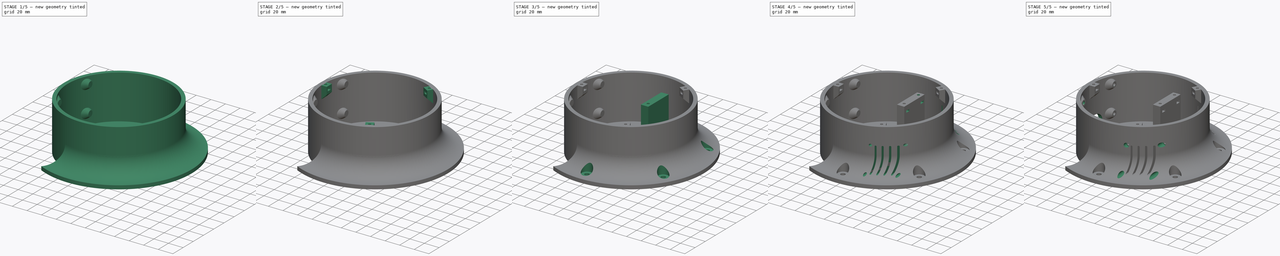
[diagram: build sequence overview — one tinted view per stage of 5, left to right]
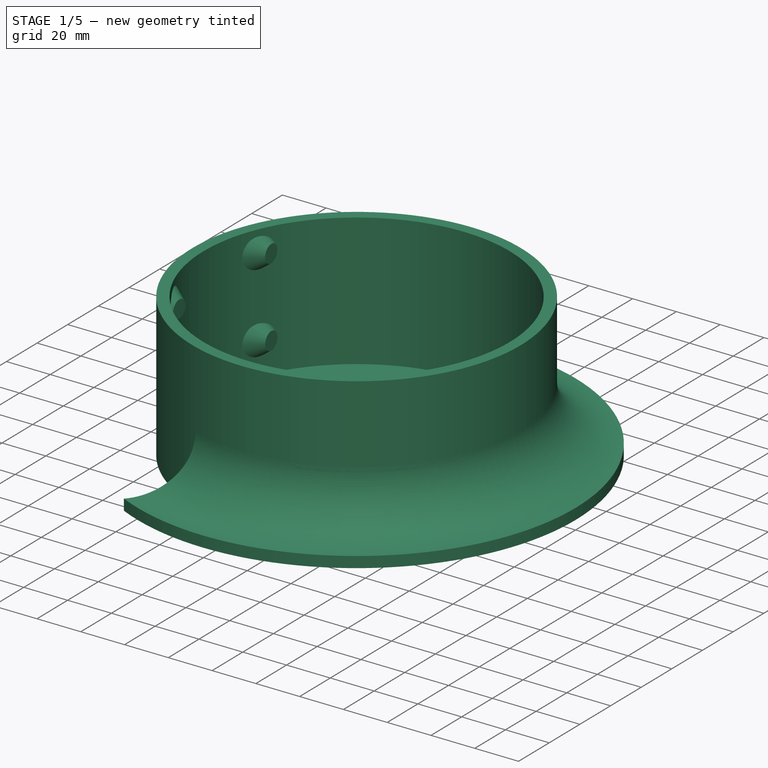
[diagram: stage 1 of 5 — iso view after this stage's code; geometry added in this stage tinted green]
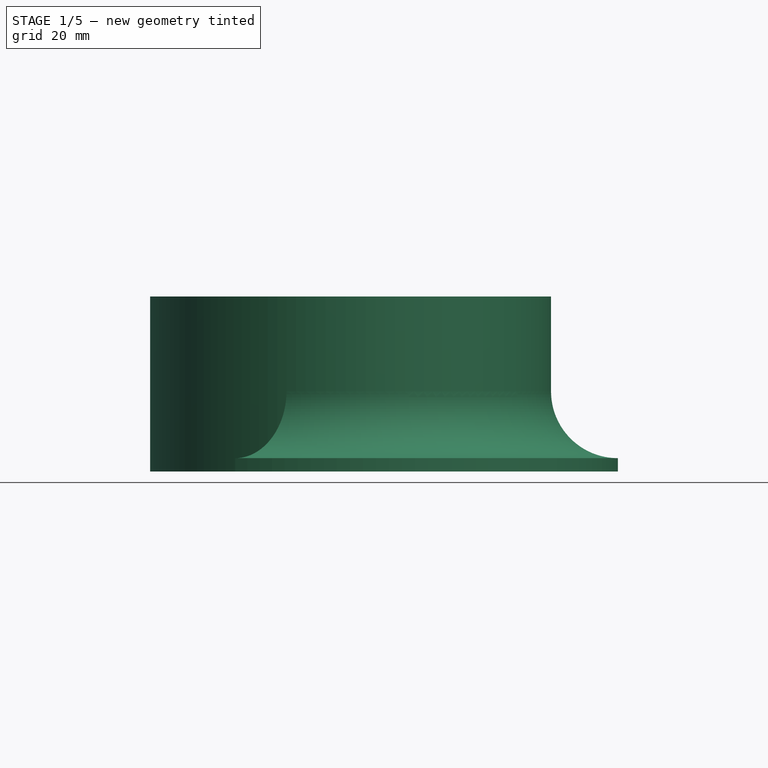
[diagram: stage 1 of 5 — front view after this stage's code; geometry added in this stage tinted green]
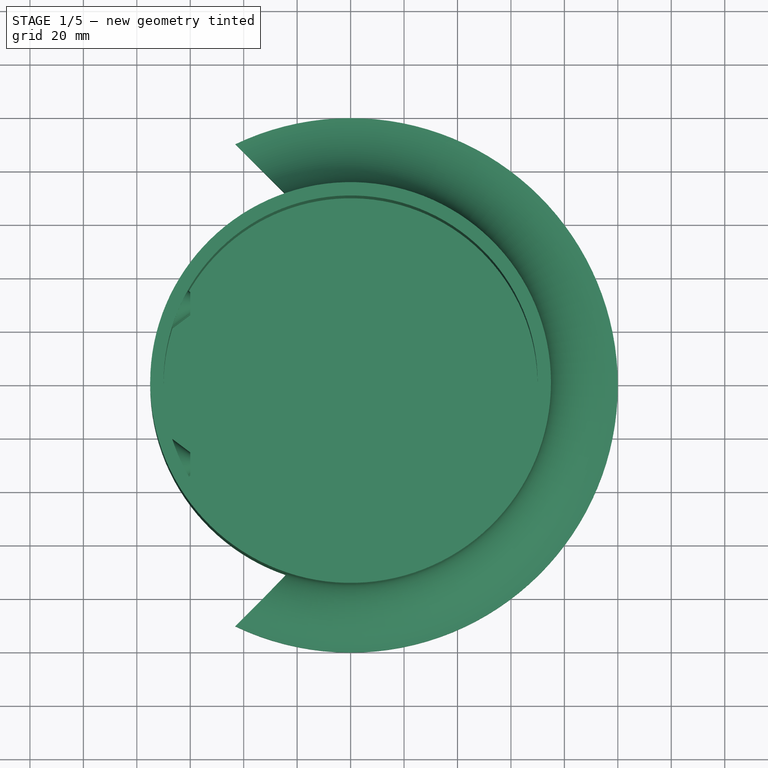
[diagram: stage 1 of 5 — top view after this stage's code; geometry added in this stage tinted green]
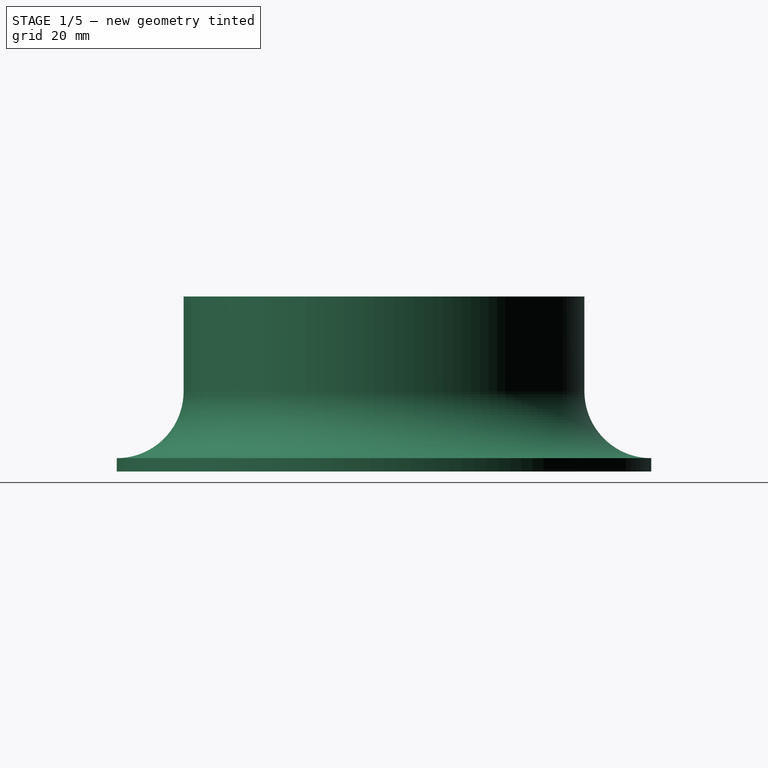
[diagram: stage 1 of 5 — right view after this stage's code; geometry added in this stage tinted green]
FCSTD DOCUMENT  (FreeCAD 0.19R24276 (Git))
Label: BaseBot
License: All rights reserved
LicenseURL: http://en.wikipedia.org/wiki/All_rights_reserved
objects: Sketcher::SketchObject×21, PartDesign::Line×17, PartDesign::Pocket×16, PartDesign::CoordinateSystem×5, PartDesign::Plane×4, PartDesign::Pad×3, PartDesign::Body×3, PartDesign::Revolution×2, PartDesign::PolarPattern×2, Spreadsheet::Sheet×1, PartDesign::LinearPattern×1, Part::FeaturePython×1, Part::Cylinder×1, Part::MultiCommon×1, Part::MultiFuse×1, PartDesign::FeatureBase×1
note: 99 computed .brp shape members not serialized (recipe doc carries the construction recipe); baked Part::Feature solids carry a one-line shape summary decoded from their .brp

FEATURE [Sketcher::SketchObject] Sketch
  FullyConstrained = true
  MapMode = 5
  Placement = pos=(0,0,0) rot=(1,0,0;1.5708rad)
  Support = -> [XZ_Plane]
  sketch-geometry (8):
    g0: LineSegment StartX=100 StartY=5 StartZ=0 EndX=100 EndY=0 EndZ=0
    g1: LineSegment StartX=100 StartY=0 StartZ=0 EndX=0 EndY=0 EndZ=0
    g2: LineSegment StartX=0 StartY=0 StartZ=0 EndX=0 EndY=5 EndZ=0
    g3: LineSegment StartX=0 StartY=5 StartZ=0 EndX=70 EndY=5 EndZ=0
    g4: LineSegment StartX=70 StartY=5 StartZ=0 EndX=70 EndY=65.5 EndZ=0
    g5: LineSegment StartX=70 StartY=65.5 StartZ=0 EndX=75 EndY=65.5 EndZ=0
    g6: LineSegment StartX=75 StartY=65.5 StartZ=0 EndX=75 EndY=30 EndZ=0
    g7: ArcOfCircle CenterX=100 CenterY=30 CenterZ=0 NormalX=0 NormalY=0 NormalZ=1 AngleXU=0 Radius=25 StartAngle=3.14159 EndAngle=4.71239
  constraints (23):
    c: PointOnObject(g0,g-1)
    c: Vertical(g0)
    c: Coincident(g0,g1)
    c: Coincident(g1,g-1)
    c: Coincident(g1,g2)
    c: PointOnObject(g2,g-2)
    c: Coincident(g2,g3)
    c: Horizontal(g3)
    c: Coincident(g3,g4)
    c: Vertical(g4)
    c: Coincident(g4,g5)
    c: Horizontal(g5)
    c: Coincident(g5,g6)
    c: Vertical(g6)
    c: Coincident(g7,g0)
    c: Perpendicular(g7,g0)
    c: Tangent(g7,g6) = -1.5708
    c: DistanceY(g0,g0) = 5
    c: Equal(g2,g0)
    c: DistanceX(g1,g1) = 100
    c: DistanceY(g1,g4) = 65.5
    c: DistanceX(g1,g5) = 75
    c: DistanceX(g2,g4) = 70
FEATURE [PartDesign::Revolution] Revolution
  Angle = 360
  Axis = (0,-2e-16,1)
  Base = (0,0,0)
  Placement = pos=(0,0,0) rot=(1,0,0;1.5708rad)
  Profile = -> Sketch
  ReferenceAxis = -> Sketch [V_Axis]
  Refine = true
  Reversed = true
FEATURE [Sketcher::SketchObject] Sketch001
  ExternalGeometry = -> [Revolution]
  FullyConstrained = true
  MapMode = 5
  Placement = pos=(0,0,0) rot=(1,0,0;3.14159rad)
  Support = -> [Revolution]
  sketch-geometry (6):
    g0: LineSegment StartX=-24 StartY=71.0563 StartZ=0 EndX=-52.9437 EndY=100 EndZ=0
    g1: LineSegment StartX=-52.9437 StartY=100 StartZ=0 EndX=-112.944 EndY=100 EndZ=0
    g2: LineSegment StartX=-112.944 StartY=100 StartZ=0 EndX=-112.944 EndY=-100 EndZ=0
    g3: LineSegment StartX=-112.944 StartY=-100 StartZ=0 EndX=-52.9437 EndY=-100 EndZ=0
    g4: LineSegment StartX=-52.9437 StartY=-100 StartZ=0 EndX=-24 EndY=-71.0563 EndZ=0
    g5: ArcOfCircle CenterX=0 CenterY=0 CenterZ=0 NormalX=0 NormalY=0 NormalZ=1 AngleXU=0 Radius=75 StartAngle=1.89653 EndAngle=4.38666
  constraints (16):
    c: Coincident(g0,g1)
    c: Horizontal(g1)
    c: Coincident(g1,g2)
    c: Coincident(g2,g3)
    c: Coincident(g3,g4)
    c: Symmetric(g2,g1,g-1)
    c: Symmetric(g0,g3,g-1)
    c: DistanceY(g2,g2) = 200
    c: DistanceX(g3,g3) = 60
    c: Angle(g1,g0) = 2.35619
    c: Coincident(g4,g5)
    c: Coincident(g5,g0)
    c: Equal(g5,g-3)
    c: Coincident(g5,g-1)
    c: DistanceX(g0,g5) = 24
    c: Angle(g4,g3) = 2.35619
FEATURE [PartDesign::Pocket] Pocket
  BaseFeature = -> Revolution
  Length = 5
  Length2 = 100
  Placement = pos=(0,0,0) rot=(1,0,0;1.5708rad)
  Profile = -> Sketch001
  Refine = true
  Type = 1
FEATURE [PartDesign::Body] Body
  Group = -> [Sketch,Revolution,Sketch001,Pocket,Sketch002,Pad,Sketch003,Pocket001,DatumPlane,Sketch004,Pocket002,PolarPattern,Sketch005,Pocket003,DatumPlane001,Sketch006,Pocket004,PolarPattern001,Sketch007,Pocket005,Sketch008,Pocket006,Sketch009,Pad001,Sketch010,Pocket007,DatumPlane002,Sketch011,Pocket008,LinearPattern,Sketch012,Pocket009,Sketch013,Pad002,Sketch014,Pocket010,Sketch015,Pocket011,DatumPlane003,+6 more]
  Origin = -> Origin
  Tip = -> Pocket014
FEATURE [Sketcher::SketchObject] Sketch019
  FullyConstrained = true
  MapMode = 5
  Placement = pos=(0,0,0) rot=(1,0,0;1.5708rad)
  Support = -> [XZ_Plane001]
  sketch-geometry (4):
    g0: LineSegment StartX=0 StartY=0 StartZ=0 EndX=0 EndY=4 EndZ=0
    g1: LineSegment StartX=0 StartY=4 StartZ=0 EndX=-8 EndY=10 EndZ=0
    g2: LineSegment StartX=-8 StartY=10 StartZ=0 EndX=-8 EndY=0 EndZ=0
    g3: LineSegment StartX=-8 StartY=0 StartZ=0 EndX=0 EndY=0 EndZ=0
  constraints (11):
    c: PointOnObject(g0,g-2)
    c: Coincident(g0,g1)
    c: Coincident(g1,g2)
    c: Vertical(g2)
    c: DistanceY(g-1,g0) = 4
    c: DistanceX(g2,g0) = 8
    c: Coincident(g0,g-1)
    c: Coincident(g3,g2)
    c: Horizontal(g3)
    c: Coincident(g3,g0)
    c: DistanceY(g2,g2) = 10
FEATURE [PartDesign::Revolution] Revolution001
  Angle = 360
  Axis = (1,0,0)
  Base = (0,0,0)
  Placement = pos=(0,0,0) rot=(1,0,0;1.5708rad)
  Profile = -> Sketch019
  ReferenceAxis = -> Sketch019 [H_Axis]
  Refine = true
FEATURE [PartDesign::Body] Body001
  Group = -> [Sketch019,Revolution001]
  Origin = -> Origin001
  Placement = pos=(-60,30,19.75) rot=(0,0,1;0rad)
  Tip = -> Revolution001
FEATURE [Part::FeaturePython] Array  # Draft array (typed FeaturePython)
  Angle = 360
  ArrayType = 0
  Axis = (0,0,1)
  Base = -> Body001
  Center = (0,0,0)
  Count = 4
  ExpandArray = false
  Fuse = false
  IntervalAxis = (0,0,0)
  IntervalX = (100,-60,32)
  IntervalY = (0,-60,0)
  IntervalZ = (0,0,36)
  NumberCircles = 3
  NumberPolar = 5
  NumberX = 1
  NumberY = 2
  NumberZ = 2
  PlacementList = 4 placements: [(-60,30,19.75),(-60,30,55.75),(-60,-30,19.75),(-60,-30,55.75)]
  RadialDistance = 50
  ScaleList = (4) [(1,1,1),(1,1,1),(1,1,1),(1,1,1)]
  Symmetry = 1
  TangentialDistance = 25
FEATURE [Part::Cylinder] Cylinder
  Angle = 360
  AttacherType = Attacher::AttachEngine3D
  Height = 65.5
  Radius = 73
FEATURE [Part::MultiCommon] Common
  Refine = true
  Shapes = -> [Array,Cylinder]
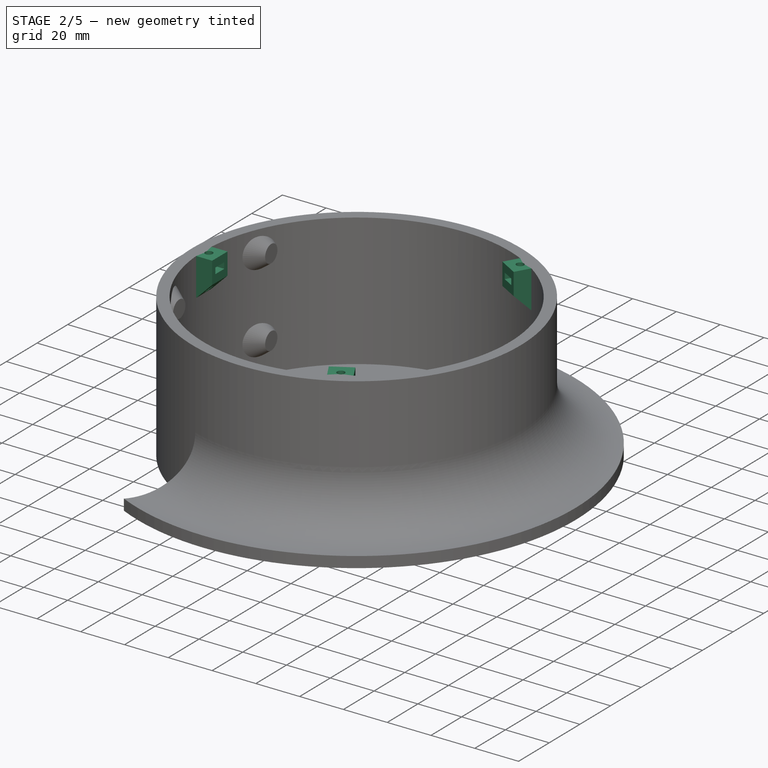
[diagram: stage 2 of 5 — iso view after this stage's code; geometry added in this stage tinted green]
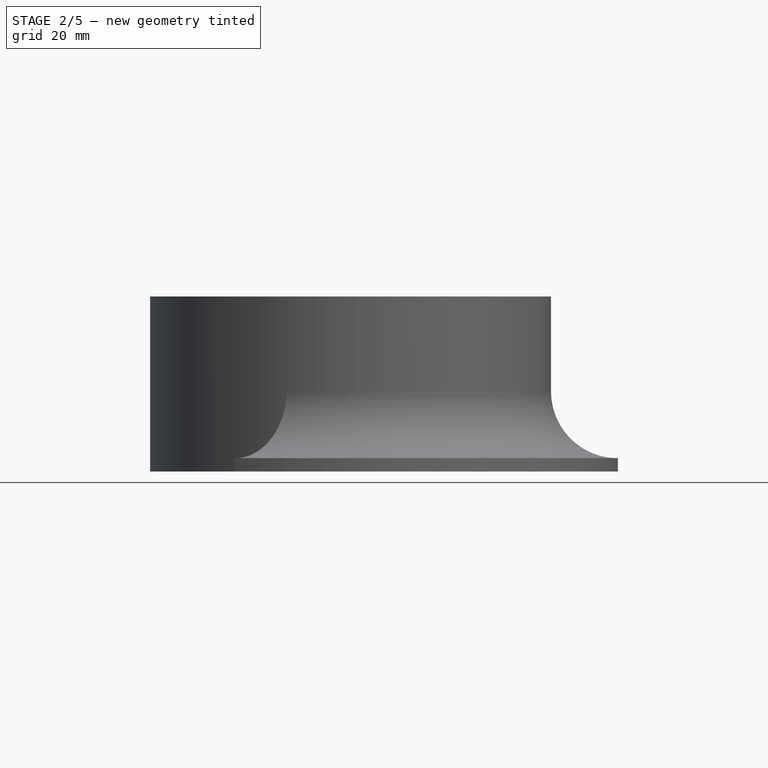
[diagram: stage 2 of 5 — front view after this stage's code; geometry added in this stage tinted green]
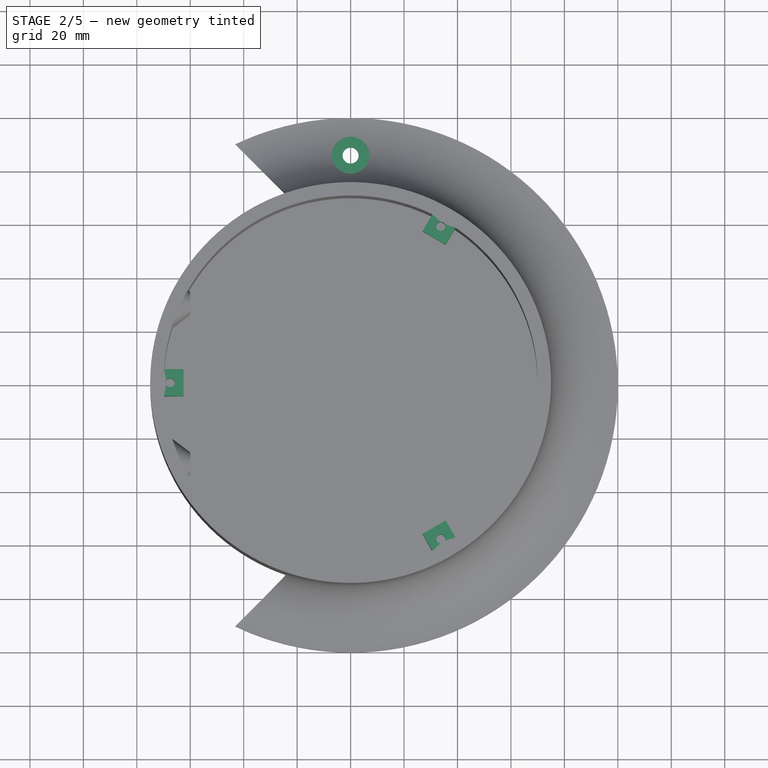
[diagram: stage 2 of 5 — top view after this stage's code; geometry added in this stage tinted green]
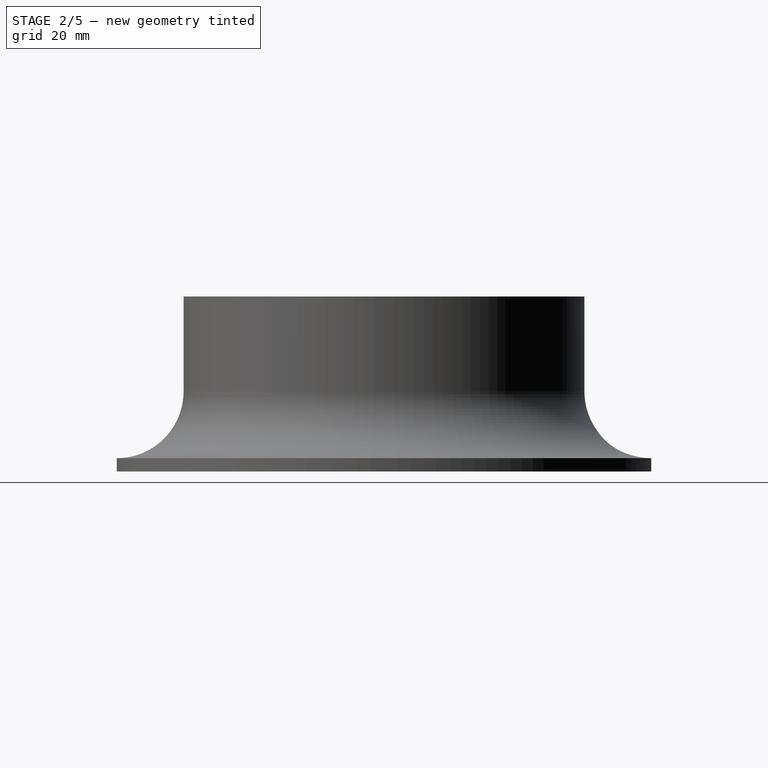
[diagram: stage 2 of 5 — right view after this stage's code; geometry added in this stage tinted green]
FEATURE [Sketcher::SketchObject] Sketch002
  ExternalGeometry = -> [Pocket]
  FullyConstrained = true
  MapMode = 5
  Placement = pos=(0,0,0) rot=(1,0,0;1.5708rad)
  Support = -> [XZ_Plane]
  sketch-geometry (4):
    g0: LineSegment StartX=-72.5 StartY=65.5 StartZ=0 EndX=-62.5 EndY=65.5 EndZ=0
    g1: LineSegment StartX=-62.5 StartY=65.5 StartZ=0 EndX=-62.5 EndY=55.5 EndZ=0
    g2: LineSegment StartX=-62.5 StartY=55.5 StartZ=0 EndX=-72.5 EndY=45.5 EndZ=0
    g3: LineSegment StartX=-72.5 StartY=45.5 StartZ=0 EndX=-72.5 EndY=65.5 EndZ=0
  constraints (13):
    c: Coincident(g0,g1)
    c: Vertical(g1)
    c: Coincident(g1,g2)
    c: Coincident(g2,g3)
    c: Coincident(g3,g0)
    c: Vertical(g3)
    c: Horizontal(g0)
    c: Angle(g2,g3) = 0.785398
    c: DistanceY(g1,g1) = 10
    c: DistanceX(g0,g0) = 10
    c: PointOnObject(g0,g-3)
    c: DistanceX(g-3,g-3) = 140
    c: DistanceX(g0,g-3) = 2.5
FEATURE [PartDesign::Pad] Pad
  BaseFeature = -> Pocket
  Direction = (1,1,1)
  Length = 10
  Length2 = 100
  Midplane = true
  Placement = pos=(0,0,0) rot=(1,0,0;1.5708rad)
  Profile = -> Sketch002
  Refine = true
  Type = 0
FEATURE [Sketcher::SketchObject] Sketch003
  ExternalGeometry = -> [Pad]
  FullyConstrained = true
  MapMode = 5
  Placement = pos=(0,1.45e-14,65.5) rot=(0,0,1;3.14159rad)
  Support = -> [Pad]
  expr: Constraints[1] = Spreadsheet.M3BoltBodyRadius
  sketch-geometry (1):
    g0: Circle CenterX=67.5 CenterY=0 CenterZ=0 NormalX=0 NormalY=0 NormalZ=1 AngleXU=0 Radius=1.7
  constraints (3):
    c: PointOnObject(g0,g-1)
    c: Radius(g0) = 1.7
    c: DistanceX(g-3,g0) = 5
FEATURE [Spreadsheet::Sheet] Spreadsheet
  cells = A2=M3BoltBodyRadius; B2(M3BoltBodyRadius)=1.7; A3=M3BoltHeadRadius; B3(M3BoltHeadRadius)=2.95; A4=M3NutCircumradius; B4(M3NutCircumradius)=3.35; A5=M3NutThickness; B5(M3NutThickness)=2.7; A6=M4BoltBodyRadius; B6(M4BoltBodyRadius)=2.2; A7=M6BoltBodyRadius; B7(M6BoltBodyRadius)=3; A8=M6WasherOuterRadius; B8(M6WasherOuterRadius)=7
FEATURE [PartDesign::Pocket] Pocket001
  BaseFeature = -> Pad
  Length = 5
  Length2 = 100
  Placement = pos=(0,0,0) rot=(1,0,0;1.5708rad)
  Profile = -> Sketch003
  Refine = true
  Type = 2
FEATURE [PartDesign::Plane] DatumPlane
  AttachmentOffset = pos=(0,0,-5) rot=(0,0,1;0rad)
  Length = 212.357
  MapMode = 5
  Placement = pos=(0,1.34e-14,60.5) rot=(0,0,1;3.14159rad)
  ResizeMode = 0
  Support = -> [Pocket001]
  Width = 236.726
FEATURE [Sketcher::SketchObject] Sketch004
  ExternalGeometry = -> [Pocket001]
  FullyConstrained = true
  MapMode = 5
  Placement = pos=(0,1.34e-14,60.5) rot=(0,0,1;3.14159rad)
  Support = -> [DatumPlane]
  expr: Constraints[19] = Spreadsheet.M3NutCircumradius
  sketch-geometry (10):
    g0: LineSegment StartX=70.85 StartY=0 StartZ=0 EndX=69.175 EndY=2.90119 EndZ=0
    g1: LineSegment StartX=69.175 StartY=2.90119 StartZ=0 EndX=65.825 EndY=2.90119 EndZ=0
    g2: LineSegment StartX=65.825 StartY=2.90119 StartZ=0 EndX=64.15 EndY=-4.7011e-12 EndZ=0
    g3: LineSegment StartX=64.15 StartY=-4.701e-12 StartZ=0 EndX=65.825 EndY=-2.90119 EndZ=0
    g4: LineSegment StartX=65.825 StartY=-2.90119 StartZ=0 EndX=69.175 EndY=-2.90119 EndZ=0
    g5: LineSegment StartX=69.175 StartY=-2.90119 StartZ=0 EndX=70.85 EndY=0 EndZ=0
    g6: Circle CenterX=67.5 CenterY=0 CenterZ=0 NormalX=0 NormalY=0 NormalZ=1 AngleXU=0 Radius=3.35
    g7: LineSegment StartX=69.175 StartY=2.90119 StartZ=0 EndX=59.175 EndY=2.90119 EndZ=0
    g8: LineSegment StartX=59.175 StartY=2.90119 StartZ=0 EndX=59.175 EndY=-2.90119 EndZ=0
    g9: LineSegment StartX=59.175 StartY=-2.90119 StartZ=0 EndX=69.175 EndY=-2.90119 EndZ=0
  constraints (24):
    c: Coincident(g0,g1)
    c: Coincident(g1,g2)
    c: Coincident(g2,g3)
    c: Coincident(g3,g4)
    c: Coincident(g4,g5)
    c: Coincident(g5,g0)
    c: Equal(g0, g1-g5) x5
    c: PointOnObject(g0,g6)
    c: PointOnObject(g1,g6)
    c: PointOnObject(g2,g6)
    c: PointOnObject(g3,g6)
    c: PointOnObject(g4,g6)
    c: PointOnObject(g5,g6)
    c: Coincident(g6,g-3)
    c: PointOnObject(g5,g-1)
    c: Radius(g6) = 3.35
    c: Coincident(g0,g7)
    c: Horizontal(g7)
    c: Coincident(g7,g8)
    c: Vertical(g8)
    c: Coincident(g8,g9)
    c: Coincident(g9,g5)
    c: Horizontal(g9)
    c: DistanceX(g9,g9) = 10
FEATURE [PartDesign::Pocket] Pocket002
  BaseFeature = -> Pocket001
  Length = 2.7
  Length2 = 100
  Midplane = true
  Placement = pos=(0,0,0) rot=(1,0,0;1.5708rad)
  Profile = -> Sketch004
  Refine = true
  Type = 0
  expr: Length = Spreadsheet.M3NutThickness
FEATURE [PartDesign::PolarPattern] PolarPattern
  Angle = 360
  Axis = -> Sketch002 [V_Axis]
  BaseFeature = -> Pocket002
  Occurrences = 3
  Originals = -> [Pad,Pocket001,Pocket002]
  Placement = pos=(0,0,0) rot=(1,0,0;1.5708rad)
  Refine = true
FEATURE [Sketcher::SketchObject] Sketch005
  FullyConstrained = true
  MapMode = 5
  Placement = pos=(0,0,0) rot=(1,0,0;3.14159rad)
  Support = -> [PolarPattern]
  expr: Constraints[1] = Spreadsheet.M6BoltBodyRadius
  sketch-geometry (1):
    g0: Circle CenterX=0 CenterY=-86 CenterZ=0 NormalX=0 NormalY=0 NormalZ=1 AngleXU=0 Radius=3
  constraints (3):
    c: PointOnObject(g0,g-2)
    c: Radius(g0) = 3
    c: DistanceY(g0,g-1) = 86
FEATURE [PartDesign::Pocket] Pocket003
  BaseFeature = -> PolarPattern
  Length = 5
  Length2 = 100
  Placement = pos=(0,0,0) rot=(1,0,0;1.5708rad)
  Profile = -> Sketch005
  Refine = true
  Type = 1
FEATURE [PartDesign::Plane] DatumPlane001
  AttachmentOffset = pos=(0,0,20) rot=(0,0,1;0rad)
  Length = 212.357
  MapMode = 5
  Placement = pos=(0,0,20) rot=(0,0,1;0rad)
  ResizeMode = 0
  Support = -> [XY_Plane]
  Width = 236.726
FEATURE [Sketcher::SketchObject] Sketch006
  ExternalGeometry = -> [Pocket003]
  FullyConstrained = true
  MapMode = 5
  Placement = pos=(0,0,20) rot=(0,0,1;0rad)
  Support = -> [DatumPlane001]
  expr: Constraints[1] = Spreadsheet.M6WasherOuterRadius
  sketch-geometry (1):
    g0: Circle CenterX=0 CenterY=86 CenterZ=0 NormalX=0 NormalY=0 NormalZ=1 AngleXU=0 Radius=7
  constraints (2):
    c: Coincident(g0,g-3)
    c: Radius(g0) = 7
FEATURE [PartDesign::Pocket] Pocket004
  BaseFeature = -> Pocket003
  Length = 15
  Length2 = 100
  Placement = pos=(0,0,0) rot=(1,0,0;1.5708rad)
  Profile = -> Sketch006
  Refine = true
  Type = 0
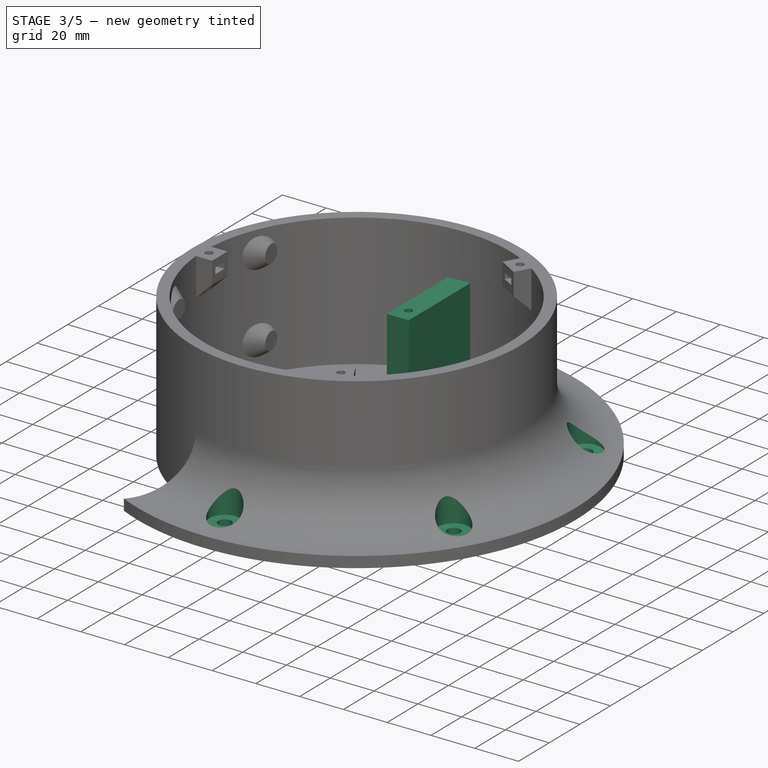
[diagram: stage 3 of 5 — iso view after this stage's code; geometry added in this stage tinted green]
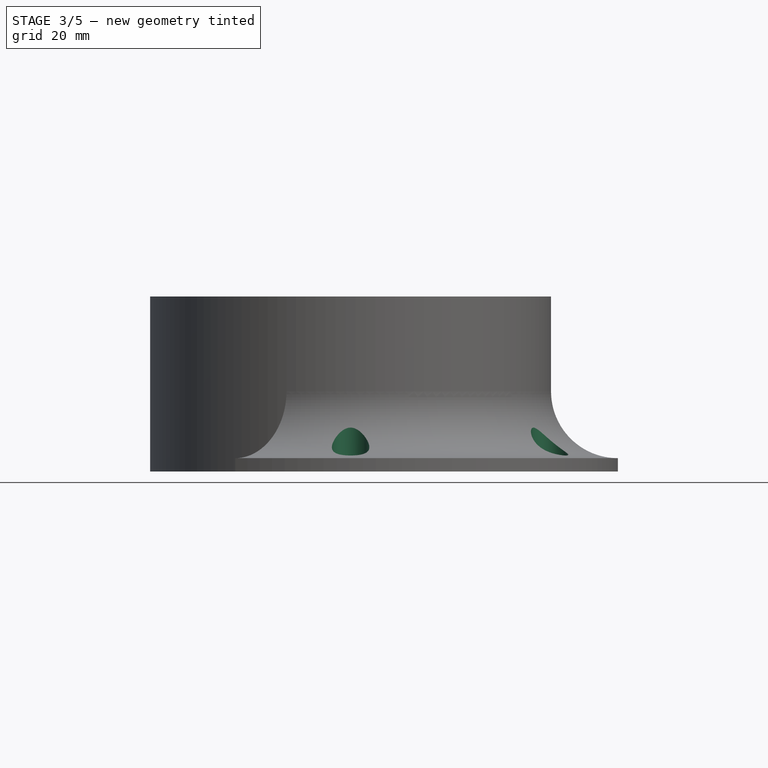
[diagram: stage 3 of 5 — front view after this stage's code; geometry added in this stage tinted green]
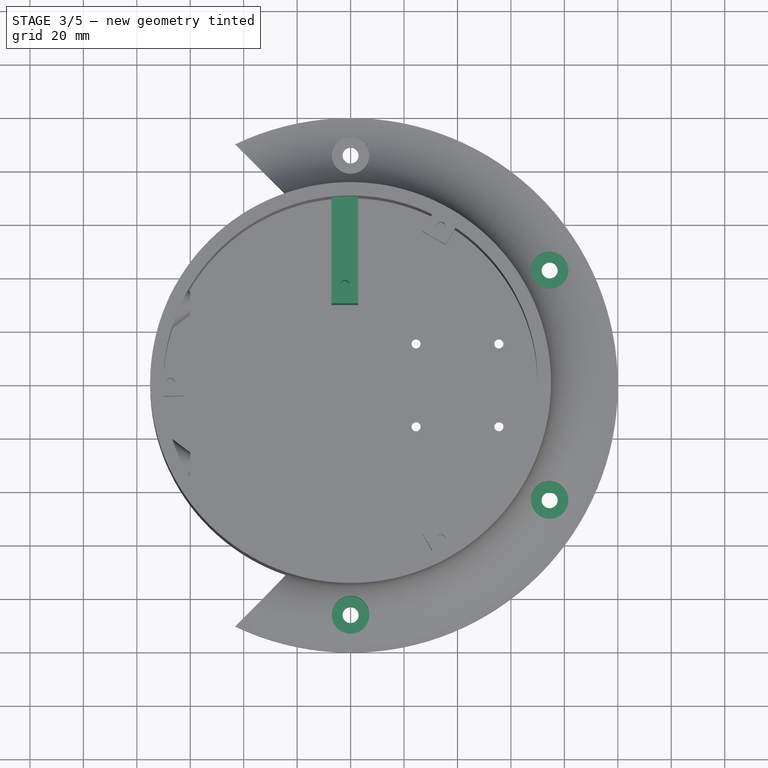
[diagram: stage 3 of 5 — top view after this stage's code; geometry added in this stage tinted green]
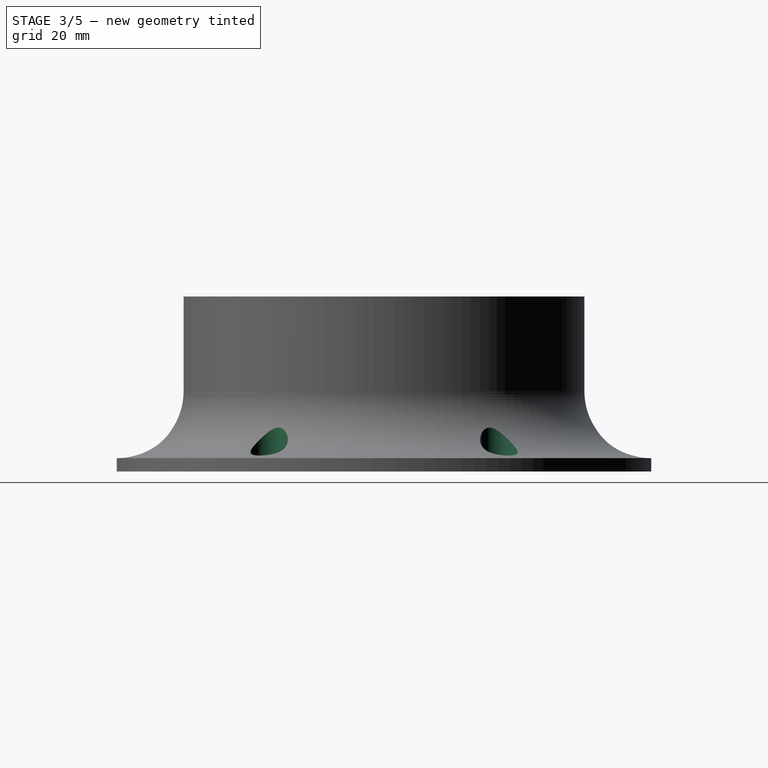
[diagram: stage 3 of 5 — right view after this stage's code; geometry added in this stage tinted green]
FEATURE [PartDesign::PolarPattern] PolarPattern001
  Angle = 360
  Axis = -> Sketch005 [N_Axis]
  BaseFeature = -> Pocket004
  Occurrences = 6
  Originals = -> [Pocket003,Pocket004]
  Placement = pos=(0,0,0) rot=(1,0,0;1.5708rad)
  Refine = true
FEATURE [Sketcher::SketchObject] Sketch007
  FullyConstrained = true
  MapMode = 5
  Placement = pos=(0,0,0) rot=(1,0,0;3.14159rad)
  Support = -> [PolarPattern001]
  expr: Constraints[18] = Spreadsheet.M3BoltBodyRadius
  sketch-geometry (8):
    g0: LineSegment StartX=24.5 StartY=15.5 StartZ=0 EndX=55.5 EndY=15.5 EndZ=0
    g1: LineSegment StartX=55.5 StartY=15.5 StartZ=0 EndX=55.5 EndY=-15.5 EndZ=0
    g2: LineSegment StartX=55.5 StartY=-15.5 StartZ=0 EndX=24.5 EndY=-15.5 EndZ=0
    g3: LineSegment StartX=24.5 StartY=-15.5 StartZ=0 EndX=24.5 EndY=15.5 EndZ=0
    g4: Circle CenterX=24.5 CenterY=15.5 CenterZ=0 NormalX=0 NormalY=0 NormalZ=1 AngleXU=0 Radius=1.7
    g5: Circle CenterX=55.5 CenterY=15.5 CenterZ=0 NormalX=0 NormalY=0 NormalZ=1 AngleXU=0 Radius=1.7
    g6: Circle CenterX=55.5 CenterY=-15.5 CenterZ=0 NormalX=0 NormalY=0 NormalZ=1 AngleXU=0 Radius=1.7
    g7: Circle CenterX=24.5 CenterY=-15.5 CenterZ=0 NormalX=0 NormalY=0 NormalZ=1 AngleXU=0 Radius=1.7
  constraints (19):
    c: Coincident(g0,g1)
    c: Coincident(g1,g2)
    c: Coincident(g2,g3)
    c: Coincident(g3,g0)
    c: Horizontal(g0)
    c: Horizontal(g2)
    c: Vertical(g1)
    c: Equal(g2,g3)
    c: DistanceX(g2,g2) = 31
    c: Symmetric(g2,g0,g-1)
    c: DistanceX(g-1,g2) = 24.5
    c: Coincident(g4,g0)
    c: Coincident(g5,g0)
    c: Coincident(g6,g1)
    c: Coincident(g7,g2)
    c: Equal(g7,g6)
    c: Equal(g6,g5)
    c: Equal(g5,g4)
    c: Radius(g4) = 1.7
FEATURE [PartDesign::Pocket] Pocket005
  BaseFeature = -> PolarPattern001
  Length = 5
  Length2 = 100
  Placement = pos=(0,0,0) rot=(1,0,0;1.5708rad)
  Profile = -> Sketch007
  Refine = true
  Type = 2
FEATURE [Sketcher::SketchObject] Sketch008
  ExternalGeometry = -> [Pocket005]
  FullyConstrained = true
  MapMode = 5
  Placement = pos=(0,0,0) rot=(1,0,0;3.14159rad)
  Support = -> [Pocket005]
  expr: Constraints[7] = Spreadsheet.M3BoltHeadRadius
  sketch-geometry (4):
    g0: Circle CenterX=24.5 CenterY=15.5 CenterZ=0 NormalX=0 NormalY=0 NormalZ=1 AngleXU=0 Radius=2.95
    g1: Circle CenterX=55.5 CenterY=15.5 CenterZ=0 NormalX=0 NormalY=0 NormalZ=1 AngleXU=0 Radius=2.95
    g2: Circle CenterX=55.5 CenterY=-15.5 CenterZ=0 NormalX=0 NormalY=0 NormalZ=1 AngleXU=0 Radius=2.95
    g3: Circle CenterX=24.5 CenterY=-15.5 CenterZ=0 NormalX=0 NormalY=0 NormalZ=1 AngleXU=0 Radius=2.95
  constraints (8):
    c: Coincident(g0,g-3)
    c: Coincident(g1,g-4)
    c: Coincident(g2,g-5)
    c: Coincident(g3,g-6)
    c: Equal(g1,g2)
    c: Equal(g2,g0)
    c: Equal(g0,g3)
    c: Radius(g0) = 2.95
FEATURE [PartDesign::Pocket] Pocket006
  BaseFeature = -> Pocket005
  Length = 2.5
  Length2 = 100
  Placement = pos=(0,0,0) rot=(1,0,0;1.5708rad)
  Profile = -> Sketch008
  Refine = true
  Type = 0
FEATURE [Sketcher::SketchObject] Sketch009
  ExternalGeometry = -> [Pocket006]
  FullyConstrained = true
  MapMode = 5
  Placement = pos=(0,1.1e-15,5) rot=(0,0,1;3.14159rad)
  Support = -> [Pocket006]
  sketch-geometry (4):
    g0: LineSegment StartX=7.2 StartY=-69.6287 StartZ=0 EndX=7.2 EndY=-30 EndZ=0
    g1: LineSegment StartX=7.2 StartY=-30 StartZ=0 EndX=-2.8 EndY=-30 EndZ=0
    g2: LineSegment StartX=-2.8 StartY=-30 StartZ=0 EndX=-2.8 EndY=-69.944 EndZ=0
    g3: ArcOfCircle CenterX=0 CenterY=0 CenterZ=0 NormalX=0 NormalY=0 NormalZ=1 AngleXU=0 Radius=70 StartAngle=4.67238 EndAngle=4.81543
  constraints (12):
    c: PointOnObject(g0,g-3)
    c: Vertical(g0)
    c: Coincident(g0,g1)
    c: Coincident(g1,g2)
    c: Vertical(g2)
    c: Coincident(g3,g-1)
    c: Coincident(g3,g2)
    c: Coincident(g3,g0)
    c: DistanceX(g1,g1) = 10
    c: DistanceY(g1,g3) = 30
    c: DistanceX(g1,g3) = 2.8
    c: Horizontal(g1)
FEATURE [PartDesign::Pad] Pad001
  BaseFeature = -> Pocket006
  Direction = (1,1,1)
  Length = 40
  Length2 = 100
  Placement = pos=(0,0,0) rot=(1,0,0;1.5708rad)
  Profile = -> Sketch009
  Refine = true
  Type = 0
FEATURE [Sketcher::SketchObject] Sketch010
  ExternalGeometry = -> [Pad001]
  FullyConstrained = true
  MapMode = 5
  Placement = pos=(1.4e-15,5.45e-14,45) rot=(0,0,1;3.14159rad)
  Support = -> [Pad001]
  expr: Constraints[0] = Spreadsheet.M3BoltBodyRadius
  sketch-geometry (1):
    g0: Circle CenterX=2.2 CenterY=-37 CenterZ=0 NormalX=0 NormalY=0 NormalZ=1 AngleXU=0 Radius=1.7
  constraints (3):
    c: Radius(g0) = 1.7
    c: DistanceY(g0,g-3) = 7
    c: DistanceX(g-3,g0) = 5
FEATURE [PartDesign::Pocket] Pocket007
  BaseFeature = -> Pad001
  Length = 21
  Length2 = 100
  Placement = pos=(0,0,0) rot=(1,0,0;1.5708rad)
  Profile = -> Sketch010
  Refine = true
  Type = 0
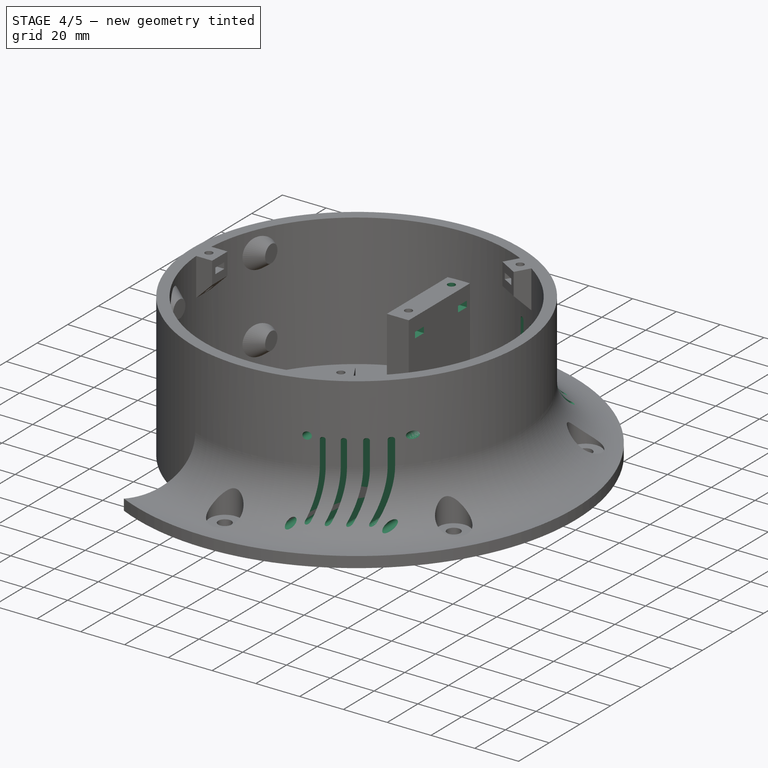
[diagram: stage 4 of 5 — iso view after this stage's code; geometry added in this stage tinted green]
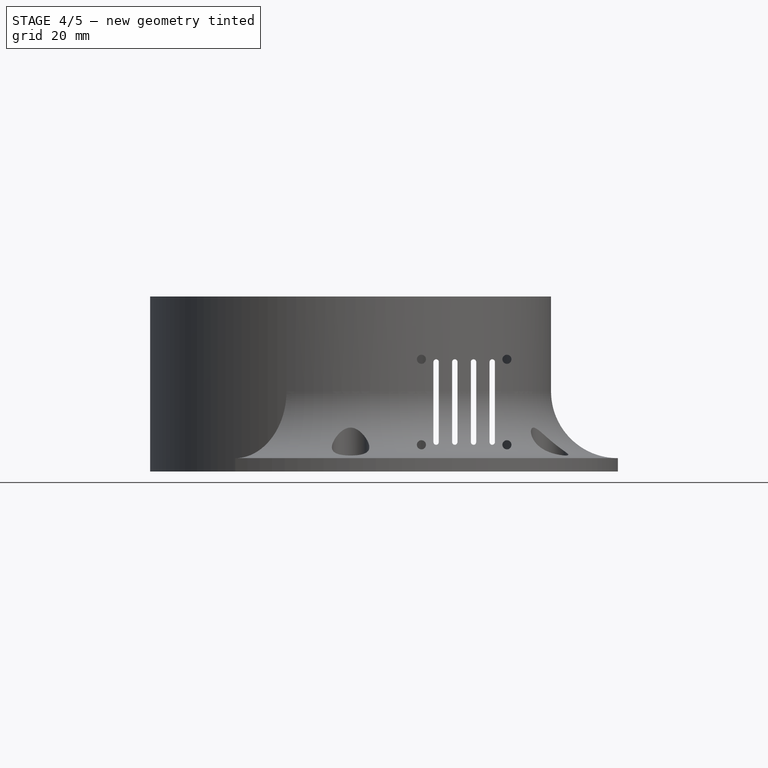
[diagram: stage 4 of 5 — front view after this stage's code; geometry added in this stage tinted green]
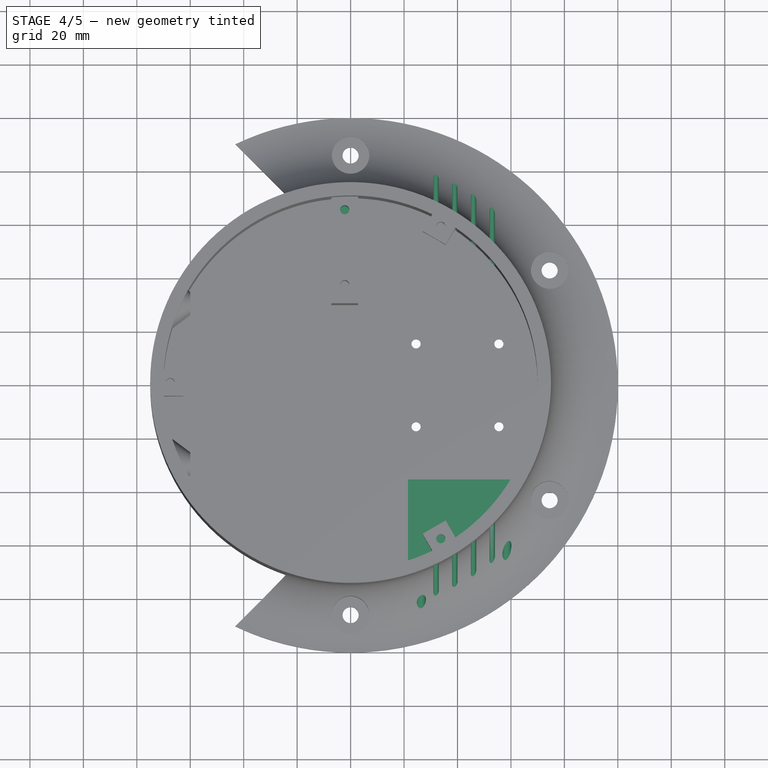
[diagram: stage 4 of 5 — top view after this stage's code; geometry added in this stage tinted green]
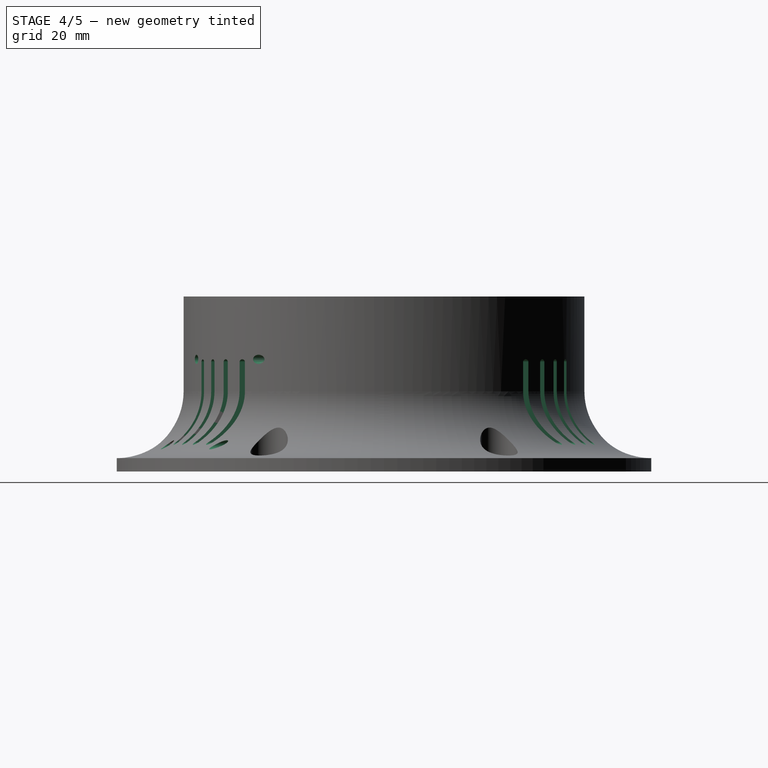
[diagram: stage 4 of 5 — right view after this stage's code; geometry added in this stage tinted green]
FEATURE [PartDesign::Plane] DatumPlane002
  AttachmentOffset = pos=(0,0,-6.35) rot=(0,0,1;0rad)
  Length = 212.357
  MapMode = 5
  Placement = pos=(1.2e-15,4.68e-14,38.65) rot=(0,0,1;3.14159rad)
  ResizeMode = 0
  Support = -> [Pocket007]
  Width = 236.726
FEATURE [Sketcher::SketchObject] Sketch011
  ExternalGeometry = -> [Pocket007]
  FullyConstrained = true
  MapMode = 5
  Placement = pos=(1.2e-15,4.68e-14,38.65) rot=(0,0,1;3.14159rad)
  Support = -> [DatumPlane002]
  expr: Constraints[19] = Spreadsheet.M3NutCircumradius
  sketch-geometry (10):
    g0: LineSegment StartX=5.55 StartY=-37 StartZ=0 EndX=3.875 EndY=-34.0988 EndZ=0
    g1: LineSegment StartX=3.875 StartY=-34.0988 StartZ=0 EndX=0.525 EndY=-34.0988 EndZ=0
    g2: LineSegment StartX=0.525 StartY=-34.0988 StartZ=0 EndX=-1.15 EndY=-37 EndZ=0
    g3: LineSegment StartX=-1.15 StartY=-37 StartZ=0 EndX=0.525 EndY=-39.9012 EndZ=0
    g4: LineSegment StartX=0.525 StartY=-39.9012 StartZ=0 EndX=3.875 EndY=-39.9012 EndZ=0
    g5: LineSegment StartX=3.875 StartY=-39.9012 StartZ=0 EndX=5.55 EndY=-37 EndZ=0
    g6: Circle CenterX=2.2 CenterY=-37 CenterZ=0 NormalX=0 NormalY=0 NormalZ=1 AngleXU=0 Radius=3.35
    g7: LineSegment StartX=3.875 StartY=-34.0988 StartZ=0 EndX=-6.125 EndY=-34.0988 EndZ=0
    g8: LineSegment StartX=-6.125 StartY=-34.0988 StartZ=0 EndX=-6.125 EndY=-39.9012 EndZ=0
    g9: LineSegment StartX=-6.125 StartY=-39.9012 StartZ=0 EndX=3.875 EndY=-39.9012 EndZ=0
  constraints (24):
    c: Coincident(g0,g1)
    c: Coincident(g1,g2)
    c: Coincident(g2,g3)
    c: Coincident(g3,g4)
    c: Coincident(g4,g5)
    c: Coincident(g5,g0)
    c: Equal(g0, g1-g5) x5
    c: PointOnObject(g0,g6)
    c: PointOnObject(g1,g6)
    c: PointOnObject(g2,g6)
    c: PointOnObject(g3,g6)
    c: PointOnObject(g4,g6)
    c: PointOnObject(g5,g6)
    c: Coincident(g6,g-3)
    c: Horizontal(g1)
    c: Radius(g6) = 3.35
    c: Coincident(g0,g7)
    c: Horizontal(g7)
    c: Coincident(g7,g8)
    c: Vertical(g8)
    c: Coincident(g8,g9)
    c: Coincident(g9,g5)
    c: Horizontal(g9)
    c: DistanceX(g9,g9) = 10
FEATURE [PartDesign::Pocket] Pocket008
  BaseFeature = -> Pocket007
  Length = 2.7
  Length2 = 100
  Placement = pos=(0,0,0) rot=(1,0,0;1.5708rad)
  Profile = -> Sketch011
  Refine = true
  Type = 0
  expr: Length = Spreadsheet.M3NutThickness
FEATURE [PartDesign::LinearPattern] LinearPattern
  BaseFeature = -> Pocket008
  Direction = -> Y_Axis
  Length = 28
  Occurrences = 2
  Originals = -> [Pocket007,Pocket008]
  Placement = pos=(0,0,0) rot=(1,0,0;1.5708rad)
  Refine = true
FEATURE [Sketcher::SketchObject] Sketch012
  FullyConstrained = true
  MapMode = 5
  Placement = pos=(0,1.1e-15,5) rot=(0,0,1;3.14159rad)
  Support = -> [LinearPattern]
  sketch-geometry (4):
    g0: LineSegment StartX=-21.5 StartY=26 StartZ=0 EndX=-63.5 EndY=26 EndZ=0
    g1: LineSegment StartX=-63.5 StartY=26 StartZ=0 EndX=-63.5 EndY=36 EndZ=0
    g2: LineSegment StartX=-63.5 StartY=36 StartZ=0 EndX=-21.5 EndY=36 EndZ=0
    g3: LineSegment StartX=-21.5 StartY=36 StartZ=0 EndX=-21.5 EndY=26 EndZ=0
  constraints (12):
    c: Coincident(g0,g1)
    c: Coincident(g1,g2)
    c: Coincident(g2,g3)
    c: Coincident(g3,g0)
    c: Horizontal(g0)
    c: Horizontal(g2)
    c: Vertical(g1)
    c: Vertical(g3)
    c: DistanceY(g-1,g2) = 36
    c: DistanceX(g2,g2) = 42
    c: DistanceX(g2,g-1) = 21.5
    c: DistanceY(g3,g3) = 10
FEATURE [PartDesign::Pocket] Pocket009
  BaseFeature = -> LinearPattern
  Length = 42
  Length2 = 100
  Placement = pos=(0,0,0) rot=(1,0,0;1.5708rad)
  Profile = -> Sketch012
  Refine = true
  Reversed = true
  Type = 0
FEATURE [Sketcher::SketchObject] Sketch013
  ExternalGeometry = -> [Pocket009]
  FullyConstrained = true
  MapMode = 5
  Placement = pos=(0,7.2e-15,5) rot=(0,0,1;3.14159rad)
  Support = -> [Pocket009]
  sketch-geometry (3):
    g0: LineSegment StartX=-60.0333 StartY=36 StartZ=0 EndX=-21.5 EndY=36 EndZ=0
    g1: LineSegment StartX=-21.5 StartY=36 StartZ=0 EndX=-21.5 EndY=66.6164 EndZ=0
    g2: ArcOfCircle CenterX=0 CenterY=0 CenterZ=0 NormalX=0 NormalY=0 NormalZ=1 AngleXU=0 Radius=70 StartAngle=1.88299 EndAngle=2.60142
  constraints (8):
    c: Coincident(g-3,g0)
    c: Horizontal(g0)
    c: Coincident(g0,g1)
    c: Coincident(g2,g-1)
    c: Coincident(g2,g1)
    c: Coincident(g2,g0)
    c: Vertical(g1)
    c: DistanceX(g-3,g0) = 42
FEATURE [PartDesign::Pad] Pad002
  BaseFeature = -> Pocket009
  Direction = (1,1,1)
  Length = 42
  Length2 = 100
  Placement = pos=(0,0,0) rot=(1,0,0;1.5708rad)
  Profile = -> Sketch013
  Refine = true
  Type = 0
FEATURE [Sketcher::SketchObject] Sketch014
  ExternalGeometry = -> [Pad002]
  FullyConstrained = true
  MapMode = 5
  Placement = pos=(7.6e-15,-36,5.66e-14) rot=(-1,0,0;1.5708rad)
  Support = -> [Pad002]
  sketch-geometry (20):
    g0: ArcOfCircle CenterX=32 CenterY=-11 CenterZ=0 NormalX=0 NormalY=0 NormalZ=1 AngleXU=0 Radius=1 StartAngle=0 EndAngle=3.14159
    g1: ArcOfCircle CenterX=32 CenterY=-41 CenterZ=0 NormalX=0 NormalY=0 NormalZ=1 AngleXU=0 Radius=1 StartAngle=3.14159 EndAngle=6.28319
    g2: LineSegment StartX=31 StartY=-11 StartZ=0 EndX=31 EndY=-41 EndZ=0
    g3: LineSegment StartX=33 StartY=-11 StartZ=0 EndX=33 EndY=-41 EndZ=0
    g4: ArcOfCircle CenterX=53 CenterY=-11 CenterZ=0 NormalX=0 NormalY=0 NormalZ=1 AngleXU=0 Radius=1 StartAngle=9e-16 EndAngle=3.14159
    g5: ArcOfCircle CenterX=53 CenterY=-41 CenterZ=0 NormalX=0 NormalY=0 NormalZ=1 AngleXU=0 Radius=1 StartAngle=3.14159 EndAngle=6.28319
    g6: LineSegment StartX=52 StartY=-11 StartZ=0 EndX=52 EndY=-41 EndZ=0
    g7: LineSegment StartX=54 StartY=-11 StartZ=0 EndX=54 EndY=-41 EndZ=0
    g8: ArcOfCircle CenterX=46 CenterY=-11 CenterZ=0 NormalX=0 NormalY=0 NormalZ=1 AngleXU=0 Radius=1 StartAngle=2e-16 EndAngle=3.14159
    g9: ArcOfCircle CenterX=46 CenterY=-41 CenterZ=0 NormalX=0 NormalY=0 NormalZ=1 AngleXU=0 Radius=1 StartAngle=3.14159 EndAngle=6.28319
    g10: LineSegment StartX=45 StartY=-11 StartZ=0 EndX=45 EndY=-41 EndZ=0
    g11: LineSegment StartX=47 StartY=-11 StartZ=0 EndX=47 EndY=-41 EndZ=0
    g12: ArcOfCircle CenterX=39 CenterY=-11 CenterZ=0 NormalX=0 NormalY=0 NormalZ=1 AngleXU=0 Radius=1 StartAngle=-9e-16 EndAngle=3.14159
    g13: ArcOfCircle CenterX=39 CenterY=-41 CenterZ=0 NormalX=0 NormalY=0 NormalZ=1 AngleXU=0 Radius=1 StartAngle=3.14159 EndAngle=6.28319
    g14: LineSegment StartX=38 StartY=-11 StartZ=0 EndX=38 EndY=-41 EndZ=0
    g15: LineSegment StartX=40 StartY=-11 StartZ=0 EndX=40 EndY=-41 EndZ=0
    g16: LineSegment StartX=32 StartY=-41 StartZ=0 EndX=53 EndY=-41 EndZ=0
    g17: LineSegment StartX=53 StartY=-41 StartZ=0 EndX=32 EndY=-11 EndZ=0
    g18: LineSegment StartX=53 StartY=-11 StartZ=0 EndX=32 EndY=-41 EndZ=0
    g19: GeomPoint X=42.5 Y=-26 Z=0
  constraints (48):
    c: Tangent(g0,g3) = 1.5708
    c: Tangent(g0,g2) = -1.5708
    c: Tangent(g2,g1) = -1.5708
    c: Tangent(g3,g1) = 1.5708
    c: Vertical(g2)
    c: Equal(g0,g1)
    c: Radius(g1) = 1
    c: DistanceY(g2,g2) = 30
    c: Tangent(g4,g7) = 1.5708
    c: Tangent(g4,g6) = -1.5708
    c: Tangent(g6,g5) = -1.5708
    c: Tangent(g7,g5) = 1.5708
    c: Vertical(g6)
    c: Equal(g4,g5)
    c: Equal(g1,g5) = 1
    c: Equal(g2,g6) = 30
    c: Tangent(g8,g11) = 1.5708
    c: Tangent(g8,g10) = -1.5708
    c: Tangent(g10,g9) = -1.5708
    c: Tangent(g11,g9) = 1.5708
    c: Vertical(g10)
    c: Equal(g8,g9)
    c: Equal(g1,g9) = 1
    c: Equal(g2,g10) = 30
    c: Tangent(g12,g15) = 1.5708
    c: Tangent(g12,g14) = -1.5708
    c: Tangent(g14,g13) = -1.5708
    c: Tangent(g15,g13) = 1.5708
    c: Vertical(g14)
    c: Equal(g12,g13)
    c: Equal(g1,g13) = 1
    c: Equal(g2,g14) = 30
    c: Coincident(g16,g1)
    c: Coincident(g16,g5)
    c: Horizontal(g16)
    c: PointOnObject(g9,g16)
    c: PointOnObject(g13,g16)
    c: DistanceX(g1,g13) = 7
    c: DistanceX(g13,g9) = 7
    c: DistanceX(g9,g5) = 7
    c: Coincident(g17,g5)
    c: Coincident(g17,g0)
    c: Coincident(g18,g4)
    c: Coincident(g18,g1)
    c: PointOnObject(g19,g18)
    c: PointOnObject(g19,g17)
    c: DistanceX(g-3,g19) = 21
    c: DistanceY(g-3,g19) = 21
FEATURE [PartDesign::Pocket] Pocket010
  BaseFeature = -> Pad002
  Length = 5
  Length2 = 100
  Midplane = true
  Placement = pos=(0,0,0) rot=(1,0,0;1.5708rad)
  Profile = -> Sketch014
  Refine = true
  Reversed = true
  Type = 1
FEATURE [Sketcher::SketchObject] Sketch015
  ExternalGeometry = -> [Pocket010]
  FullyConstrained = true
  MapMode = 5
  Placement = pos=(7.6e-15,-36,5.66e-14) rot=(-1,0,0;1.5708rad)
  Support = -> [Pocket010]
  expr: Constraints[25] = Spreadsheet.M3BoltBodyRadius
  sketch-geometry (11):
    g0: Circle CenterX=26.5 CenterY=-10 CenterZ=0 NormalX=0 NormalY=0 NormalZ=1 AngleXU=0 Radius=1.7
    g1: Circle CenterX=26.5 CenterY=-42 CenterZ=0 NormalX=0 NormalY=0 NormalZ=1 AngleXU=0 Radius=1.7
    g2: Circle CenterX=58.5 CenterY=-10 CenterZ=0 NormalX=0 NormalY=0 NormalZ=1 AngleXU=0 Radius=1.7
    g3: Circle CenterX=58.5 CenterY=-42 CenterZ=0 NormalX=0 NormalY=0 NormalZ=1 AngleXU=0 Radius=1.7
    g4: LineSegment StartX=26.5 StartY=-10 StartZ=0 EndX=58.5 EndY=-10 EndZ=0
    g5: LineSegment StartX=58.5 StartY=-10 StartZ=0 EndX=58.5 EndY=-42 EndZ=0
    g6: LineSegment StartX=58.5 StartY=-42 StartZ=0 EndX=26.5 EndY=-42 EndZ=0
    g7: LineSegment StartX=26.5 StartY=-42 StartZ=0 EndX=26.5 EndY=-10 EndZ=0
    g8: LineSegment StartX=26.5 StartY=-42 StartZ=0 EndX=58.5 EndY=-10 EndZ=0
    g9: LineSegment StartX=26.5 StartY=-10 StartZ=0 EndX=58.5 EndY=-42 EndZ=0
    g10: GeomPoint X=42.5 Y=-26 Z=0
  constraints (26):
    c: Coincident(g6,g8)
    c: Coincident(g6,g7)
    c: Horizontal(g6)
    c: Horizontal(g4)
    c: Vertical(g5)
    c: Vertical(g7)
    c: Coincident(g4,g7)
    c: Coincident(g4,g9)
    c: Coincident(g2,g4)
    c: Coincident(g2,g5)
    c: Coincident(g2,g8)
    c: Coincident(g3,g5)
    c: Coincident(g3,g9)
    c: Coincident(g6,g5)
    c: Equal(g6,g5)
    c: Coincident(g1,g6)
    c: Equal(g1,g3)
    c: Equal(g3,g2)
    c: Equal(g2,g0)
    c: Coincident(g0,g4)
    c: DistanceY(g7,g7) = 32
    c: PointOnObject(g10,g9)
    c: PointOnObject(g10,g8)
    c: DistanceX(g-3,g10) = 21
    c: DistanceY(g-3,g10) = 21
    c: Radius(g1) = 1.7
FEATURE [PartDesign::Pocket] Pocket011
  BaseFeature = -> Pocket010
  Length = 75
  Length2 = 100
  Placement = pos=(0,0,0) rot=(1,0,0;1.5708rad)
  Profile = -> Sketch015
  Refine = true
  Type = 0
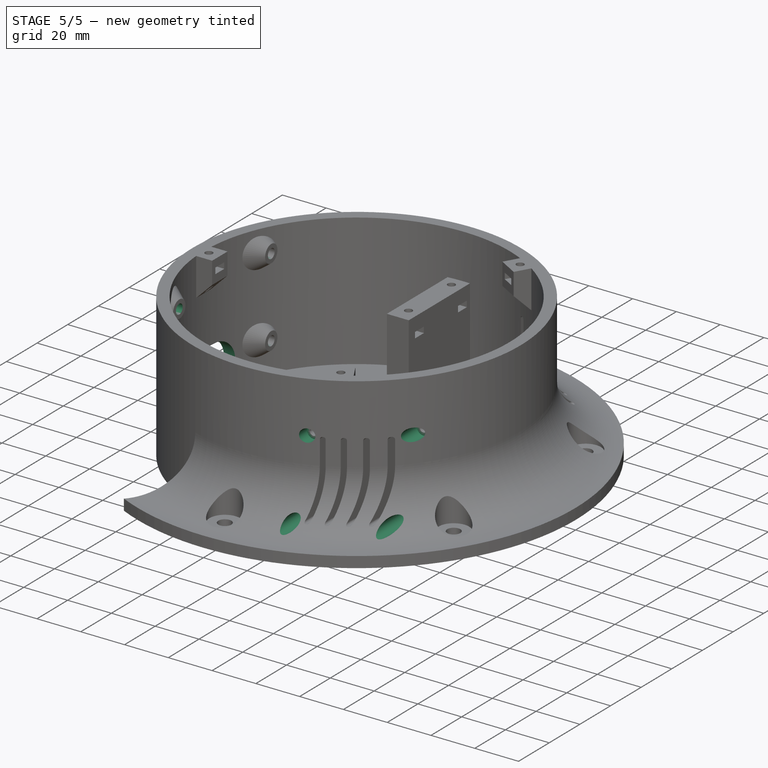
[diagram: stage 5 of 5 — iso view after this stage's code; geometry added in this stage tinted green]
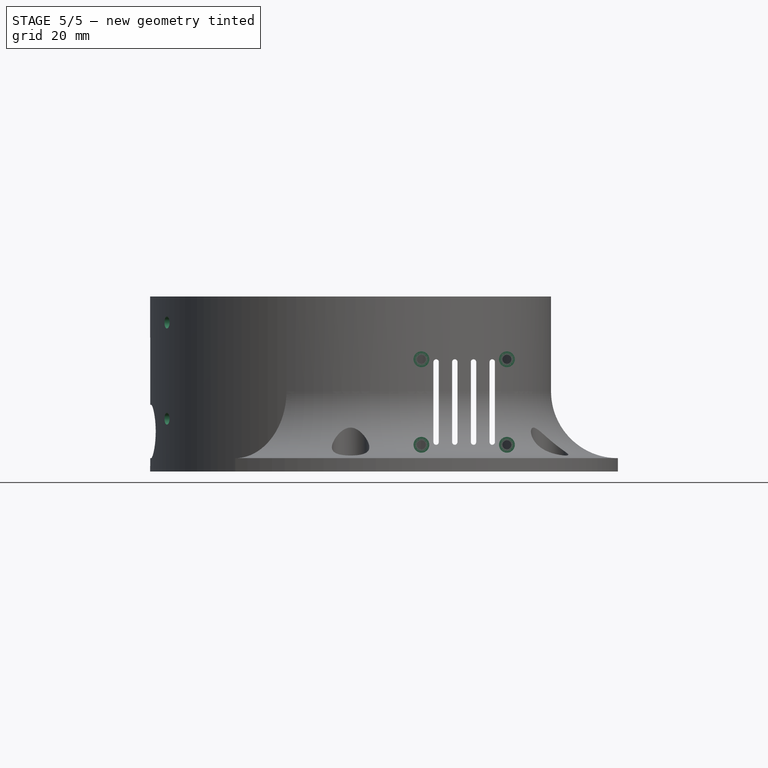
[diagram: stage 5 of 5 — front view after this stage's code; geometry added in this stage tinted green]
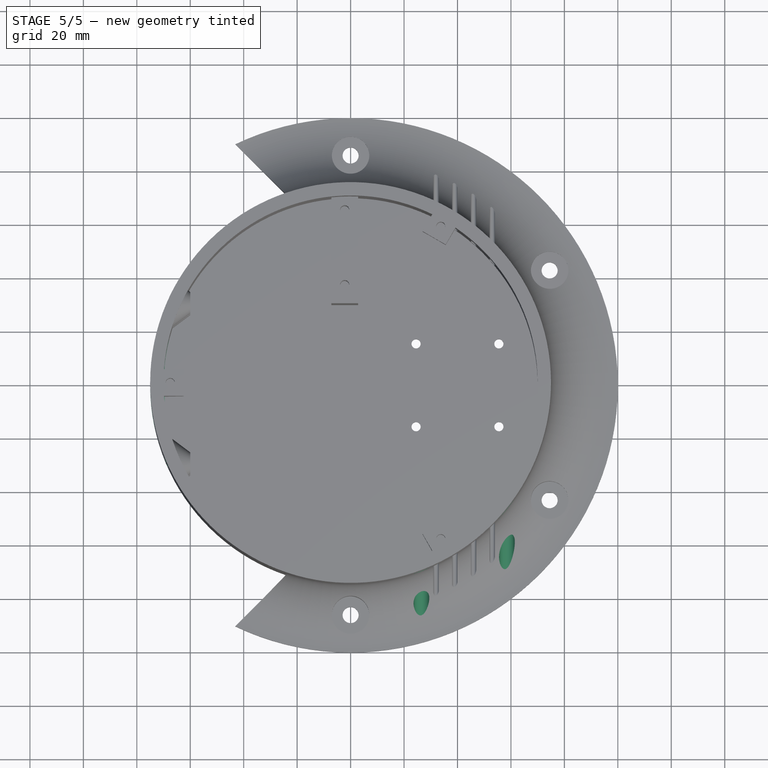
[diagram: stage 5 of 5 — top view after this stage's code; geometry added in this stage tinted green]
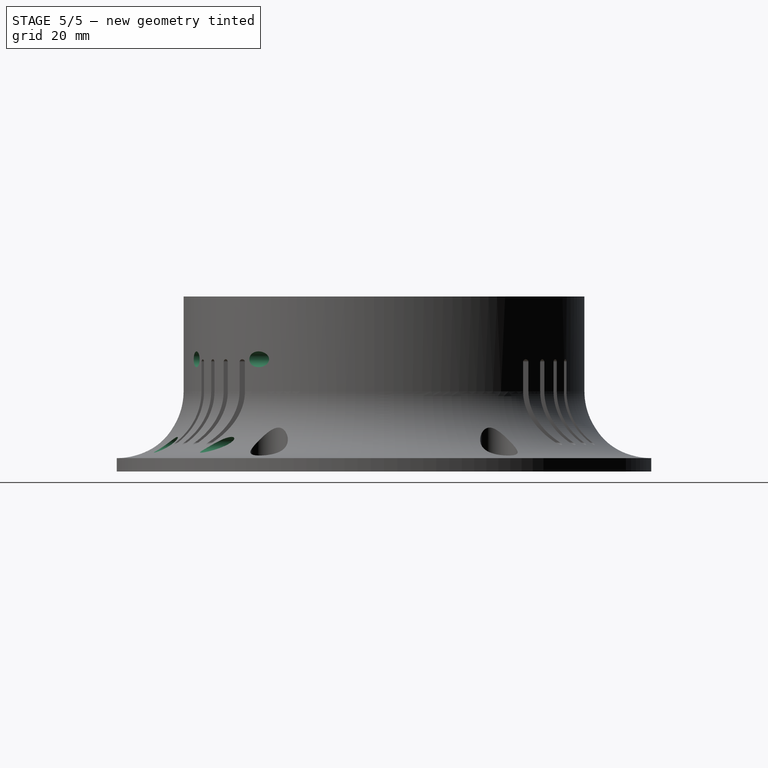
[diagram: stage 5 of 5 — right view after this stage's code; geometry added in this stage tinted green]
FEATURE [PartDesign::Plane] DatumPlane003
  AttachmentOffset = pos=(0,0,-65) rot=(0,0,1;0rad)
  Length = 200.169
  MapMode = 5
  Placement = pos=(2.12e-14,-101,1.468e-13) rot=(-1,0,0;1.5708rad)
  ResizeMode = 0
  Support = -> [Pocket011]
  Width = 115.669
FEATURE [Sketcher::SketchObject] Sketch016
  ExternalGeometry = -> [Pocket011]
  FullyConstrained = true
  MapMode = 5
  Placement = pos=(2.12e-14,-101,1.468e-13) rot=(-1,0,0;1.5708rad)
  Support = -> [DatumPlane003]
  expr: Constraints[1] = Spreadsheet.M3BoltHeadRadius
  sketch-geometry (2):
    g0: Circle CenterX=26.5 CenterY=-10 CenterZ=0 NormalX=0 NormalY=0 NormalZ=1 AngleXU=0 Radius=2.95
    g1: Circle CenterX=26.5 CenterY=-42 CenterZ=0 NormalX=0 NormalY=0 NormalZ=1 AngleXU=0 Radius=2.95
  constraints (4):
    c: Equal(g1,g0)
    c: Radius(g0) = 2.95
    c: Coincident(g0,g-3)
    c: Coincident(g1,g-4)
FEATURE [PartDesign::Pocket] Pocket012
  BaseFeature = -> Pocket011
  Length = 35
  Length2 = 100
  Placement = pos=(0,0,0) rot=(1,0,0;1.5708rad)
  Profile = -> Sketch016
  Refine = true
  Reversed = true
  Type = 0
FEATURE [Sketcher::SketchObject] Sketch017
  ExternalGeometry = -> [Pocket012]
  FullyConstrained = true
  MapMode = 5
  Placement = pos=(2.12e-14,-101,1.468e-13) rot=(-1,0,0;1.5708rad)
  Support = -> [DatumPlane003]
  expr: Constraints[1] = Spreadsheet.M3BoltHeadRadius
  sketch-geometry (2):
    g0: Circle CenterX=58.5 CenterY=-10 CenterZ=0 NormalX=0 NormalY=0 NormalZ=1 AngleXU=0 Radius=2.95
    g1: Circle CenterX=58.5 CenterY=-42 CenterZ=0 NormalX=0 NormalY=0 NormalZ=1 AngleXU=0 Radius=2.95
  constraints (4):
    c: Equal(g1,g0)
    c: Radius(g1) = 2.95
    c: Coincident(g1,g-4)
    c: Coincident(g0,g-3)
FEATURE [PartDesign::Pocket] Pocket013
  BaseFeature = -> Pocket012
  Length = 61
  Length2 = 100
  Placement = pos=(0,0,0) rot=(1,0,0;1.5708rad)
  Profile = -> Sketch017
  Refine = true
  Reversed = true
  Type = 0
FEATURE [Sketcher::SketchObject] Sketch018
  FullyConstrained = true
  MapMode = 5
  Placement = pos=(0,0,0) rot=(0.57735,0.57735,0.57735;2.0944rad)
  Support = -> [YZ_Plane]
  sketch-geometry (4):
    g0: ArcOfCircle CenterX=-7.5 CenterY=15 CenterZ=0 NormalX=0 NormalY=0 NormalZ=1 AngleXU=0 Radius=10 StartAngle=1.5708 EndAngle=4.71239
    g1: ArcOfCircle CenterX=7.5 CenterY=15 CenterZ=0 NormalX=0 NormalY=0 NormalZ=1 AngleXU=0 Radius=10 StartAngle=4.71239 EndAngle=7.85398
    g2: LineSegment StartX=-7.5 StartY=5 StartZ=0 EndX=7.5 EndY=5 EndZ=0
    g3: LineSegment StartX=-7.5 StartY=25 StartZ=0 EndX=7.5 EndY=25 EndZ=0
  constraints (9):
    c: Tangent(g0,g3) = 1.5708
    c: Tangent(g0,g2) = -1.5708
    c: Tangent(g2,g1) = -1.5708
    c: Tangent(g3,g1) = 1.5708
    c: Horizontal(g2)
    c: Radius(g0) = 10
    c: DistanceX(g2,g2) = 15
    c: Symmetric(g0,g1,g-2)
    c: DistanceY(g-1,g0) = 5
FEATURE [PartDesign::Pocket] Pocket014
  BaseFeature = -> Pocket013
  Length = 80
  Length2 = 100
  Placement = pos=(0,0,0) rot=(1,0,0;1.5708rad)
  Profile = -> Sketch018
  Refine = true
  Type = 0
FEATURE [Part::MultiFuse] Fusion
  Refine = true
  Shapes = -> [Body,Common]
FEATURE [PartDesign::FeatureBase] BaseFeature
  BaseFeature = -> Fusion
FEATURE [Sketcher::SketchObject] Sketch020
  ExternalGeometry = -> [BaseFeature]
  FullyConstrained = true
  MapMode = 5
  Placement = pos=(-60,0,0) rot=(0.57735,0.57735,0.57735;2.0944rad)
  Support = -> [BaseFeature]
  expr: Constraints[3] = Spreadsheet.M4BoltBodyRadius
  sketch-geometry (4):
    g0: Circle CenterX=30 CenterY=55.75 CenterZ=0 NormalX=0 NormalY=0 NormalZ=1 AngleXU=0 Radius=2.2
    g1: Circle CenterX=30 CenterY=19.75 CenterZ=0 NormalX=0 NormalY=0 NormalZ=1 AngleXU=0 Radius=2.2
    g2: Circle CenterX=-30 CenterY=19.75 CenterZ=0 NormalX=0 NormalY=0 NormalZ=1 AngleXU=0 Radius=2.2
    g3: Circle CenterX=-30 CenterY=55.75 CenterZ=0 NormalX=0 NormalY=0 NormalZ=1 AngleXU=0 Radius=2.2
  constraints (8):
    c: Equal(g3,g2)
    c: Equal(g2,g1)
    c: Equal(g1,g0)
    c: Radius(g3) = 2.2
    c: Coincident(g3,g-6)
    c: Coincident(g2,g-5)
    c: Coincident(g1,g-4)
    c: Coincident(g0,g-3)
FEATURE [PartDesign::Pocket] Pocket015
  BaseFeature = -> BaseFeature
  Length = 5
  Length2 = 100
  Profile = -> Sketch020
  Refine = true
  Type = 1
FEATURE [PartDesign::CoordinateSystem] LCS_Top001  label="LCS_Top"
  AttacherType = Attacher::AttachEngine3D
  MapMode = 11
  Placement = pos=(0,1.45e-14,65.5) rot=(0.707107,-0.707107,0;3.14159rad)
  Support = -> [Pocket015]
FEATURE [PartDesign::CoordinateSystem] LCS_OpticSensor
  AttacherType = Attacher::AttachEngine3D
  MapMode = 45
  Placement = pos=(-2.2,51,45) rot=(0,0,1;0rad)
  Support = -> [Pocket015]
FEATURE [PartDesign::CoordinateSystem] LCS_Stepper
  AttacherType = Attacher::AttachEngine3D
  MapMode = 45
  Placement = pos=(40,4e-15,5) rot=(0,0,1;0rad)
  Support = -> [Pocket015]
FEATURE [PartDesign::CoordinateSystem] LCS_Fan001  label="LCS_Fan"
  AttacherType = Attacher::AttachEngine3D
  MapMode = 45
  Placement = pos=(42.5,-36,26) rot=(0,0.707107,0.707107;3.14159rad)
  Support = -> [Pocket015]
FEATURE [PartDesign::Line] HoleAxis_1
  AttacherType = Attacher::AttachEngineLine
  Length = 6.1999
  MapMode = 19
  Placement = pos=(-60,-30,55.75) rot=(0.57735,0.57735,0.57735;2.0944rad)
  ResizeMode = 1
  Support = -> [Pocket015]
FEATURE [PartDesign::Line] HoleAxis_2
  AttacherType = Attacher::AttachEngineLine
  Length = 6.1999
  MapMode = 19
  Placement = pos=(-60,30,55.75) rot=(0.57735,0.57735,0.57735;2.0944rad)
  ResizeMode = 1
  Support = -> [Pocket015]
FEATURE [PartDesign::Line] HoleAxis_3
  AttacherType = Attacher::AttachEngineLine
  Length = 6.1999
  MapMode = 19
  Placement = pos=(-60,30,19.75) rot=(0.57735,0.57735,0.57735;2.0944rad)
  ResizeMode = 1
  Support = -> [Pocket015]
FEATURE [PartDesign::Line] HoleAxis_4
  AttacherType = Attacher::AttachEngineLine
  Length = 6.1999
  MapMode = 19
  Placement = pos=(-60,-30,19.75) rot=(0.57735,0.57735,0.57735;2.0944rad)
  ResizeMode = 1
  Support = -> [Pocket015]
FEATURE [PartDesign::Line] HoleAxis_5
  AttacherType = Attacher::AttachEngineLine
  Length = 4.79083
  MapMode = 19
  Placement = pos=(26.5,-66,42) rot=(-1,0,0;1.5708rad)
  ResizeMode = 1
  Support = -> [Pocket015]
FEATURE [PartDesign::Line] HoleAxis_6
  AttacherType = Attacher::AttachEngineLine
  Length = 4.79083
  MapMode = 19
  Placement = pos=(58.5,-40,42) rot=(-1,0,0;1.5708rad)
  ResizeMode = 1
  Support = -> [Pocket015]
FEATURE [PartDesign::Line] HoleAxis_7
  AttacherType = Attacher::AttachEngineLine
  Length = 4.79083
  MapMode = 19
  Placement = pos=(58.5,-40,10) rot=(-1,0,0;1.5708rad)
  ResizeMode = 1
  Support = -> [Pocket015]
FEATURE [PartDesign::Line] HoleAxis_8
  AttacherType = Attacher::AttachEngineLine
  Length = 4.79083
  MapMode = 19
  Placement = pos=(26.5,-66,10) rot=(-1,0,0;1.5708rad)
  ResizeMode = 1
  Support = -> [Pocket015]
FEATURE [PartDesign::Line] HoleAxis_9
  AttacherType = Attacher::AttachEngineLine
  Length = 4.79083
  MapMode = 19
  Placement = pos=(-2.2,37,35.95) rot=(0,0,1;3.14159rad)
  ResizeMode = 1
  Support = -> [Pocket015]
FEATURE [PartDesign::Line] HoleAxis_10
  AttacherType = Attacher::AttachEngineLine
  Length = 4.79083
  MapMode = 19
  Placement = pos=(-2.2,65,35.95) rot=(0,0,1;3.14159rad)
  ResizeMode = 1
  Support = -> [Pocket015]
FEATURE [PartDesign::Line] HoleAxis_11
  AttacherType = Attacher::AttachEngineLine
  Length = 4.79858
  MapMode = 19
  Placement = pos=(33.75,58.4567,59.15) rot=(0,0,1;1.0472rad)
  ResizeMode = 1
  Support = -> [Pocket015]
FEATURE [PartDesign::Line] HoleAxis_12
  AttacherType = Attacher::AttachEngineLine
  Length = 4.79858
  MapMode = 19
  Placement = pos=(33.75,-58.4567,59.15) rot=(0,0,-1;1.0472rad)
  ResizeMode = 1
  Support = -> [Pocket015]
FEATURE [PartDesign::Line] HoleAxis_13
  AttacherType = Attacher::AttachEngineLine
  Length = 4.79083
  MapMode = 19
  Placement = pos=(-67.5,3.28e-14,59.15) rot=(0,0,1;3.14159rad)
  ResizeMode = 1
  Support = -> [Pocket015]
FEATURE [PartDesign::Line] HoleAxis_14
  AttacherType = Attacher::AttachEngineLine
  Length = 4.79083
  MapMode = 19
  Placement = pos=(24.5,-15.5,2.5) rot=(-1,0,0;3.14159rad)
  ResizeMode = 1
  Support = -> [Pocket015]
FEATURE [PartDesign::Line] HoleAxis_15
  AttacherType = Attacher::AttachEngineLine
  Length = 4.79083
  MapMode = 19
  Placement = pos=(24.5,15.5,2.5) rot=(-1,0,0;3.14159rad)
  ResizeMode = 1
  Support = -> [Pocket015]
FEATURE [PartDesign::Line] HoleAxis_16
  AttacherType = Attacher::AttachEngineLine
  Length = 4.79083
  MapMode = 19
  Placement = pos=(55.5,-15.5,2.5) rot=(-1,0,0;3.14159rad)
  ResizeMode = 1
  Support = -> [Pocket015]
FEATURE [PartDesign::Line] HoleAxis_17
  AttacherType = Attacher::AttachEngineLine
  Length = 4.79083
  MapMode = 19
  Placement = pos=(55.5,15.5,2.5) rot=(-1,0,0;3.14159rad)
  ResizeMode = 1
  Support = -> [Pocket015]
FEATURE [PartDesign::CoordinateSystem] LCS_Bot
  AttacherType = Attacher::AttachEngine3D
FEATURE [PartDesign::Body] Body002  label="BaseBot"
  BaseFeature = -> Fusion
  Group = -> [BaseFeature,Sketch020,Pocket015,LCS_Top001,LCS_OpticSensor,LCS_Stepper,LCS_Fan001,HoleAxis_1,HoleAxis_2,HoleAxis_3,HoleAxis_4,HoleAxis_5,HoleAxis_6,HoleAxis_7,HoleAxis_8,HoleAxis_9,HoleAxis_10,HoleAxis_11,HoleAxis_12,HoleAxis_13,HoleAxis_14,HoleAxis_15,HoleAxis_16,HoleAxis_17,LCS_Bot]
  Origin = -> Origin002
  Tip = -> Pocket015
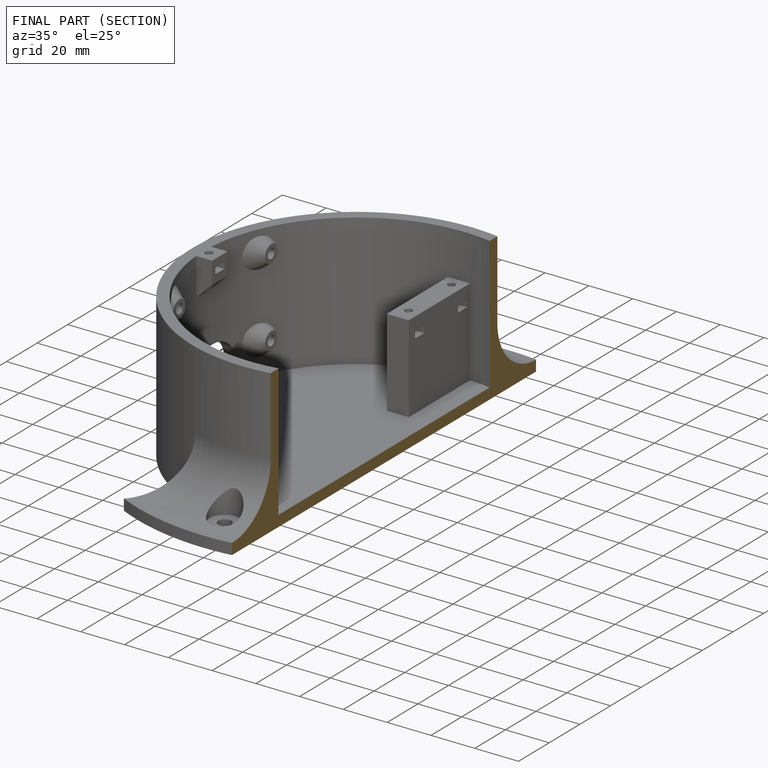
[diagram: finished part — half-section view (interior)]
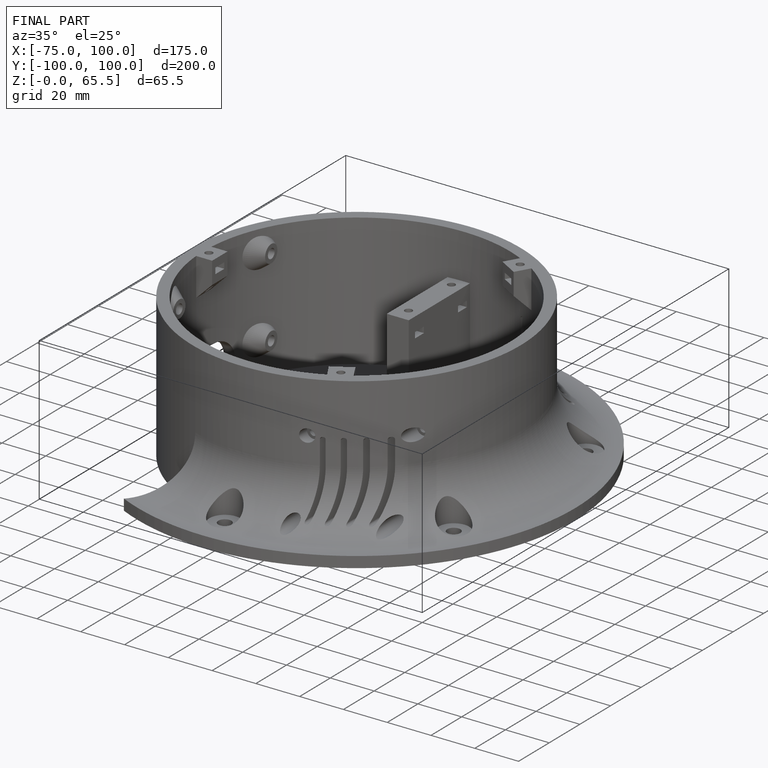
[diagram: finished part — iso view with bounding-box wireframe]
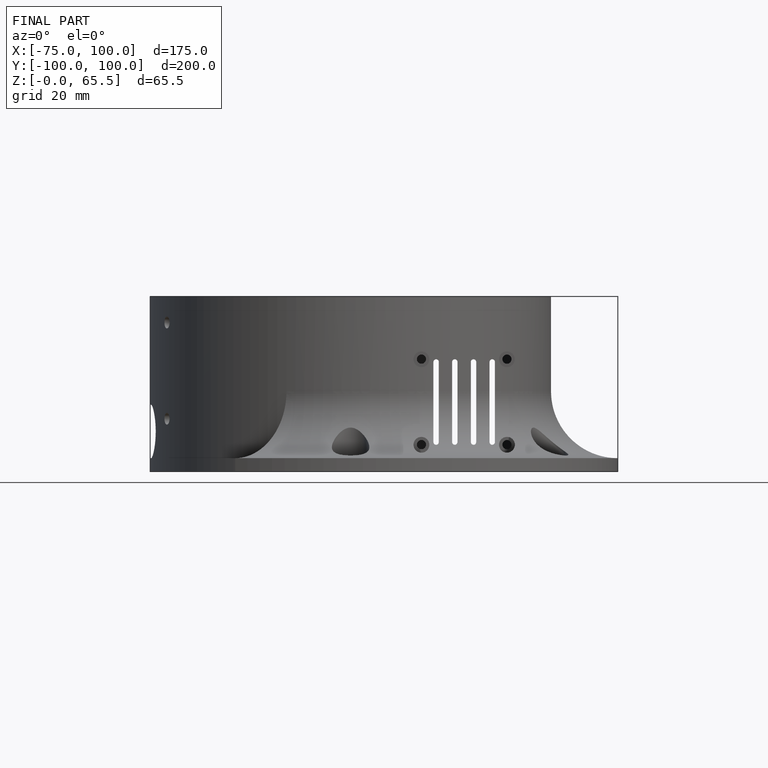
[diagram: finished part — front view with bounding-box wireframe]
